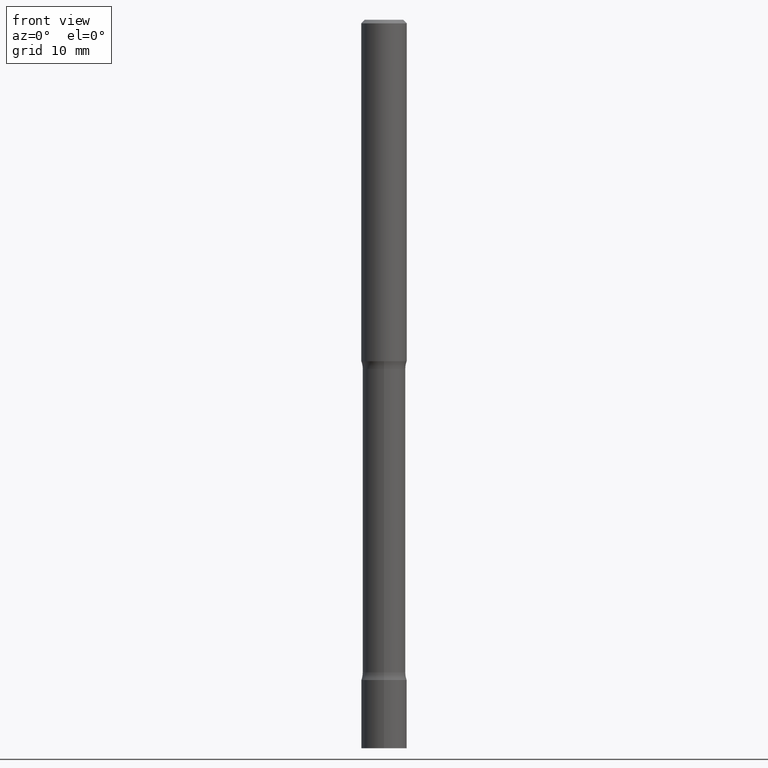
[diagram: clean part render]
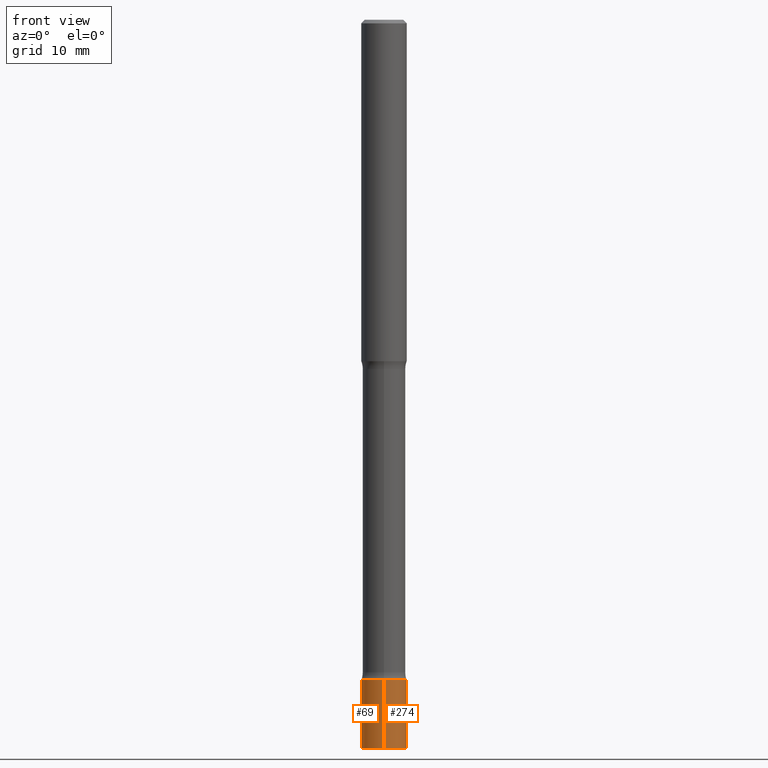
[diagram: same view with one multi-face feature highlighted, each face labeled with its STEP entity id]
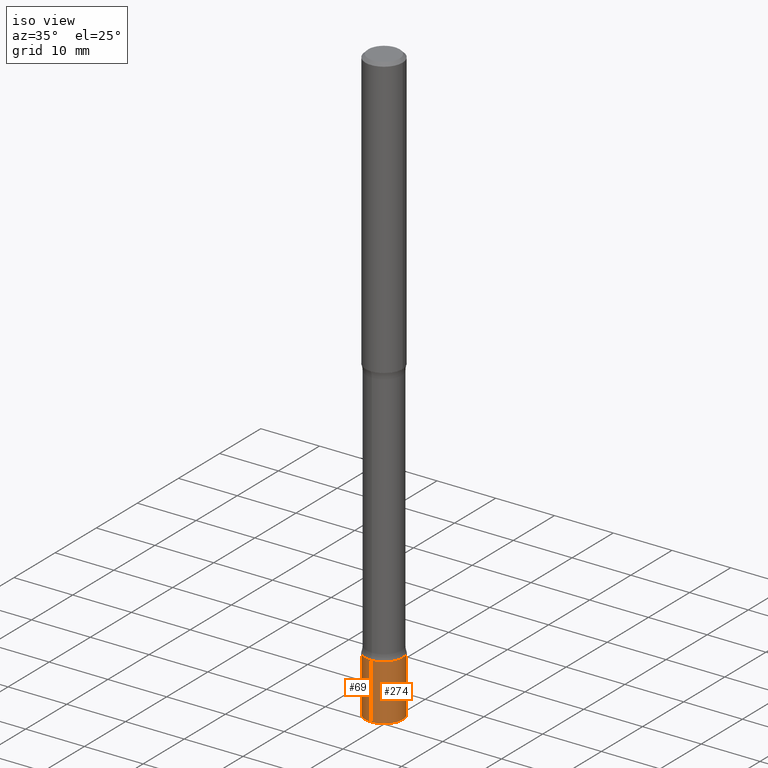
[diagram: same view with one multi-face feature highlighted, each face labeled with its STEP entity id]
A machine part, front view. The highlighted faces form ONE feature: a constant-radius fillet chain: 2 tangent blend faces with common blend radius 3.175 mm. The faces share edges in the B-rep.
A second angle (iso view) of the same feature is appended — it is thin or edge-on in the first view.
Their STEP definitions:
[1] entity #69 (Cylinder):
#2 = DIRECTION ( 'NONE',  ( -2.442527019409646182E-29, 3.495694144941752733E-15, 1.000000000000000000 ) ) ;
#55 = DIRECTION ( 'NONE',  ( -2.442527019409646182E-29, 3.495694144941752733E-15, 1.000000000000000000 ) ) ;
#65 = CIRCLE ( 'NONE', #147, 0.1250000000000001110 ) ;
#69 = ADVANCED_FACE ( 'NONE', ( #384 ), #256, .T. ) ;
#76 = EDGE_CURVE ( 'NONE', #484, #439, #304, .T. ) ;
#78 = DIRECTION ( 'NONE',  ( -6.982962677686266711E-15, -1.000000000000000000, 4.370956789862817205E-15 ) ) ;
#81 = CARTESIAN_POINT ( 'NONE',  ( 0.000000000000000000, 0.000000000000000000, 0.000000000000000000 ) ) ;
#82 = CARTESIAN_POINT ( 'NONE',  ( 9.770108077638584728E-29, -1.398277657976701093E-14, -4.000000000000000000 ) ) ;
#105 = AXIS2_PLACEMENT_3D ( 'NONE', #481, #55, #353 ) ;
#108 = VERTEX_POINT ( 'NONE', #349 ) ;
#118 = ORIENTED_EDGE ( 'NONE', *, *, #489, .F. ) ;
#122 = VECTOR ( 'NONE', #333, 39.37007874015748143 ) ;
#147 = AXIS2_PLACEMENT_3D ( 'NONE', #82, #457, #78 ) ;
#150 = EDGE_CURVE ( 'NONE', #108, #439, #433, .T. ) ;
#164 = ORIENTED_EDGE ( 'NONE', *, *, #150, .T. ) ;
#182 = CARTESIAN_POINT ( 'NONE',  ( 8.881784197001260212E-16, 0.1250000000000001110, -4.369617681177194861E-16 ) ) ;
#192 = VERTEX_POINT ( 'NONE', #426 ) ;
#212 = ORIENTED_EDGE ( 'NONE', *, *, #246, .T. ) ;
#246 = EDGE_CURVE ( 'NONE', #192, #108, #65, .T. ) ;
#247 = CARTESIAN_POINT ( 'NONE',  ( -8.728703347107841277E-16, -0.1250000000000001110, 4.369617681177194861E-16 ) ) ;
#255 = CARTESIAN_POINT ( 'NONE',  ( 8.881784197002238400E-16, 0.1249999999999874545, -3.625000000000000444 ) ) ;
#256 = CYLINDRICAL_SURFACE ( 'NONE', #504, 0.1250000000000001110 ) ;
#304 = CIRCLE ( 'NONE', #105, 0.1250000000000001110 ) ;
#305 = CARTESIAN_POINT ( 'NONE',  ( -8.728703347106954794E-16, -0.1250000000000127953, -3.624999999999999112 ) ) ;
#315 = ORIENTED_EDGE ( 'NONE', *, *, #76, .F. ) ;
#333 = DIRECTION ( 'NONE',  ( -2.442527019409646182E-29, 3.495694144941752733E-15, 1.000000000000000000 ) ) ;
#349 = CARTESIAN_POINT ( 'NONE',  ( -8.728703347106864075E-16, -0.1250000000000140998, -3.999999999999999556 ) ) ;
#353 = DIRECTION ( 'NONE',  ( -6.982962677686266711E-15, -1.000000000000000000, 4.370956789862817205E-15 ) ) ;
#384 = FACE_OUTER_BOUND ( 'NONE', #445, .T. ) ;
#387 = LINE ( 'NONE', #182, #415 ) ;
#415 = VECTOR ( 'NONE', #2, 39.37007874015748143 ) ;
#426 = CARTESIAN_POINT ( 'NONE',  ( 8.881784197002191068E-16, 0.1249999999999861361, -4.000000000000000888 ) ) ;
#433 = LINE ( 'NONE', #247, #122 ) ;
#439 = VERTEX_POINT ( 'NONE', #305 ) ;
#440 = DIRECTION ( 'NONE',  ( -6.982962677686266711E-15, -1.000000000000000000, 3.495694144941752733E-15 ) ) ;
#445 = EDGE_LOOP ( 'NONE', ( #118, #212, #164, #315 ) ) ;
#457 = DIRECTION ( 'NONE',  ( -2.442527019409646182E-29, 3.495694144941752733E-15, 1.000000000000000000 ) ) ;
#481 = CARTESIAN_POINT ( 'NONE',  ( 8.854160445359965974E-29, -1.267189127541385287E-14, -3.624999999999999556 ) ) ;
#484 = VERTEX_POINT ( 'NONE', #255 ) ;
#489 = EDGE_CURVE ( 'NONE', #192, #484, #387, .T. ) ;
#499 = DIRECTION ( 'NONE',  ( -2.442527019409646182E-29, 3.495694144941752733E-15, 1.000000000000000000 ) ) ;
#504 = AXIS2_PLACEMENT_3D ( 'NONE', #81, #499, #440 ) ;
[2] entity #274 (Cylinder):
#2 = DIRECTION ( 'NONE',  ( -2.442527019409646182E-29, 3.495694144941752733E-15, 1.000000000000000000 ) ) ;
#11 = AXIS2_PLACEMENT_3D ( 'NONE', #380, #268, #90 ) ;
#39 = DIRECTION ( 'NONE',  ( -6.982962677686266711E-15, -1.000000000000000000, 4.370956789862817205E-15 ) ) ;
#67 = ORIENTED_EDGE ( 'NONE', *, *, #150, .F. ) ;
#90 = DIRECTION ( 'NONE',  ( -6.982962677686266711E-15, -1.000000000000000000, 3.495694144941752733E-15 ) ) ;
#108 = VERTEX_POINT ( 'NONE', #349 ) ;
#116 = DIRECTION ( 'NONE',  ( -2.442527019409646182E-29, 3.495694144941752733E-15, 1.000000000000000000 ) ) ;
#120 = CARTESIAN_POINT ( 'NONE',  ( 9.770108077638584728E-29, -1.398277657976701093E-14, -4.000000000000000000 ) ) ;
#122 = VECTOR ( 'NONE', #333, 39.37007874015748143 ) ;
#141 = CIRCLE ( 'NONE', #179, 0.1250000000000001110 ) ;
#150 = EDGE_CURVE ( 'NONE', #108, #439, #433, .T. ) ;
#179 = AXIS2_PLACEMENT_3D ( 'NONE', #469, #116, #200 ) ;
#182 = CARTESIAN_POINT ( 'NONE',  ( 8.881784197001260212E-16, 0.1250000000000001110, -4.369617681177194861E-16 ) ) ;
#184 = DIRECTION ( 'NONE',  ( -2.442527019409646182E-29, 3.495694144941752733E-15, 1.000000000000000000 ) ) ;
#192 = VERTEX_POINT ( 'NONE', #426 ) ;
#200 = DIRECTION ( 'NONE',  ( -6.982962677686266711E-15, -1.000000000000000000, 4.370956789862817205E-15 ) ) ;
#247 = CARTESIAN_POINT ( 'NONE',  ( -8.728703347107841277E-16, -0.1250000000000001110, 4.369617681177194861E-16 ) ) ;
#255 = CARTESIAN_POINT ( 'NONE',  ( 8.881784197002238400E-16, 0.1249999999999874545, -3.625000000000000444 ) ) ;
#268 = DIRECTION ( 'NONE',  ( -2.442527019409646182E-29, 3.495694144941752733E-15, 1.000000000000000000 ) ) ;
#274 = ADVANCED_FACE ( 'NONE', ( #294 ), #463, .T. ) ;
#294 = FACE_OUTER_BOUND ( 'NONE', #347, .T. ) ;
#305 = CARTESIAN_POINT ( 'NONE',  ( -8.728703347106954794E-16, -0.1250000000000127953, -3.624999999999999112 ) ) ;
#308 = ORIENTED_EDGE ( 'NONE', *, *, #489, .T. ) ;
#333 = DIRECTION ( 'NONE',  ( -2.442527019409646182E-29, 3.495694144941752733E-15, 1.000000000000000000 ) ) ;
#337 = CIRCLE ( 'NONE', #360, 0.1250000000000001110 ) ;
#347 = EDGE_LOOP ( 'NONE', ( #352, #308, #348, #67 ) ) ;
#348 = ORIENTED_EDGE ( 'NONE', *, *, #491, .F. ) ;
#349 = CARTESIAN_POINT ( 'NONE',  ( -8.728703347106864075E-16, -0.1250000000000140998, -3.999999999999999556 ) ) ;
#352 = ORIENTED_EDGE ( 'NONE', *, *, #438, .T. ) ;
#360 = AXIS2_PLACEMENT_3D ( 'NONE', #120, #184, #39 ) ;
#380 = CARTESIAN_POINT ( 'NONE',  ( 0.000000000000000000, 0.000000000000000000, 0.000000000000000000 ) ) ;
#387 = LINE ( 'NONE', #182, #415 ) ;
#415 = VECTOR ( 'NONE', #2, 39.37007874015748143 ) ;
#426 = CARTESIAN_POINT ( 'NONE',  ( 8.881784197002191068E-16, 0.1249999999999861361, -4.000000000000000888 ) ) ;
#433 = LINE ( 'NONE', #247, #122 ) ;
#438 = EDGE_CURVE ( 'NONE', #108, #192, #337, .T. ) ;
#439 = VERTEX_POINT ( 'NONE', #305 ) ;
#463 = CYLINDRICAL_SURFACE ( 'NONE', #11, 0.1250000000000001110 ) ;
#469 = CARTESIAN_POINT ( 'NONE',  ( 8.854160445359965974E-29, -1.267189127541385287E-14, -3.624999999999999556 ) ) ;
#484 = VERTEX_POINT ( 'NONE', #255 ) ;
#489 = EDGE_CURVE ( 'NONE', #192, #484, #387, .T. ) ;
#491 = EDGE_CURVE ( 'NONE', #439, #484, #141, .T. ) ;